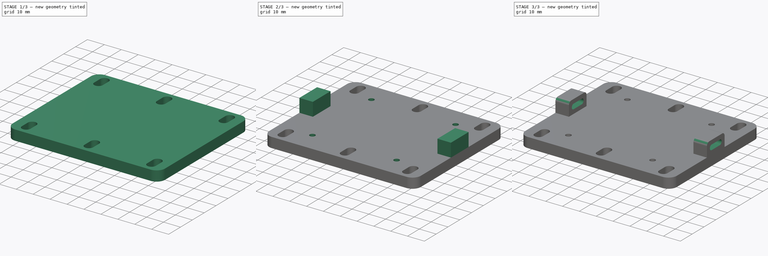
[diagram: build sequence overview — one tinted view per stage of 3, left to right]
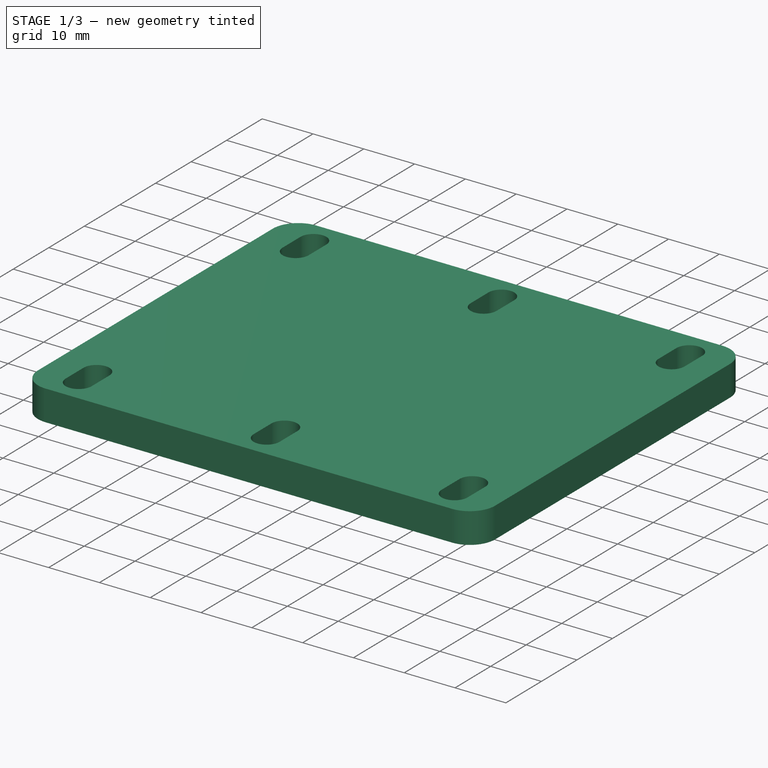
[diagram: stage 1 of 3 — iso view after this stage's code; geometry added in this stage tinted green]
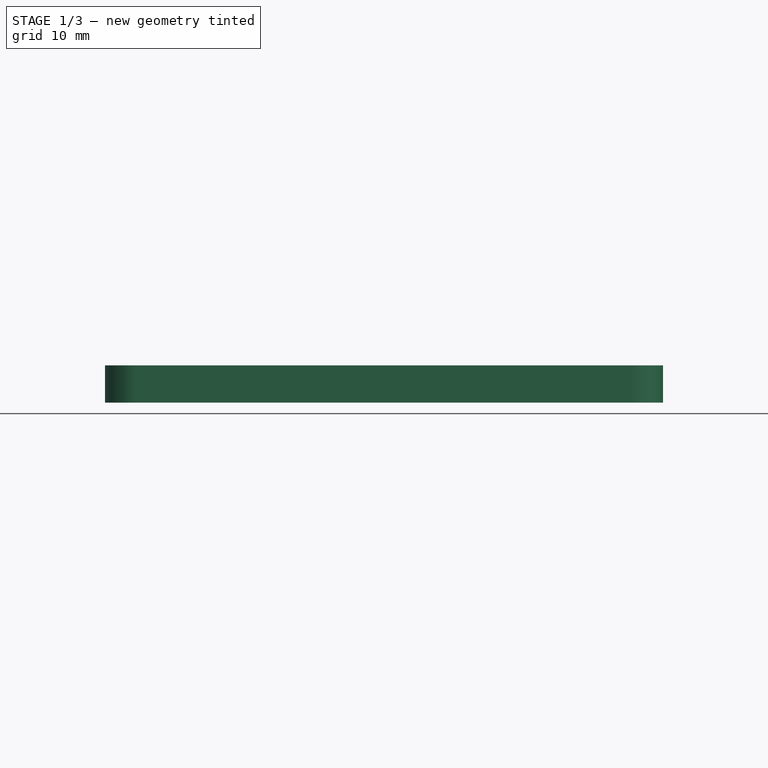
[diagram: stage 1 of 3 — front view after this stage's code; geometry added in this stage tinted green]
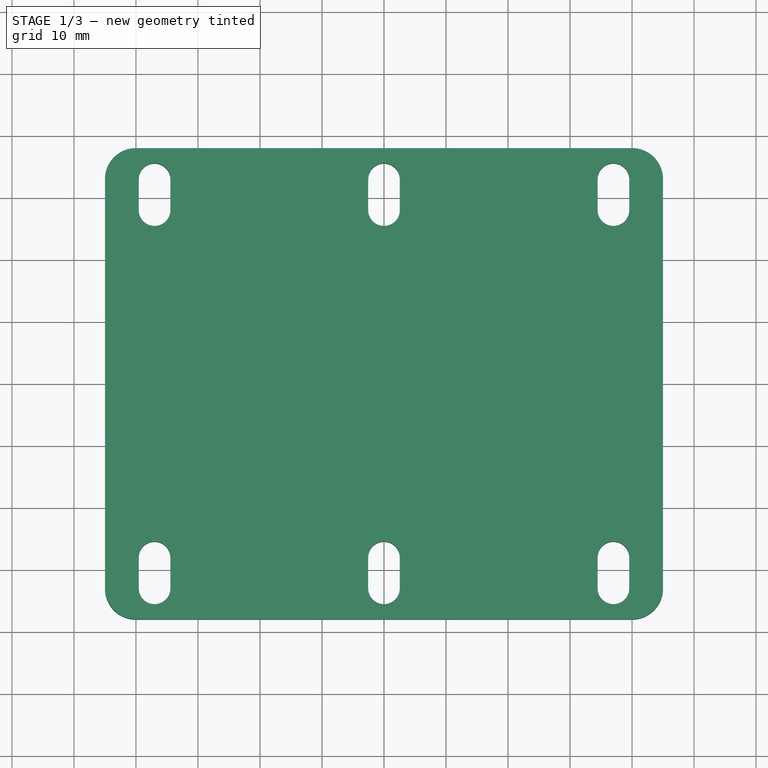
[diagram: stage 1 of 3 — top view after this stage's code; geometry added in this stage tinted green]
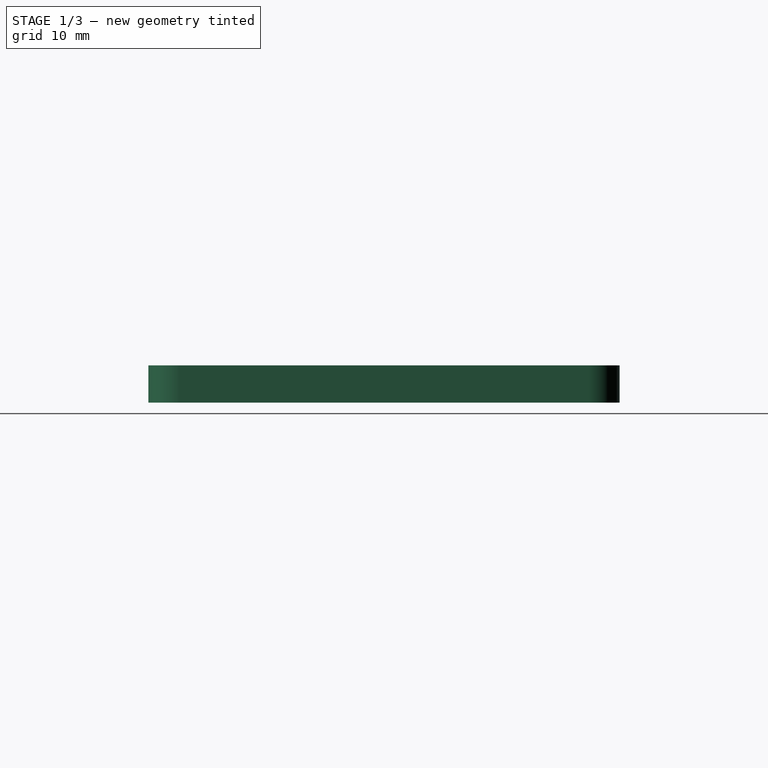
[diagram: stage 1 of 3 — right view after this stage's code; geometry added in this stage tinted green]
FCSTD DOCUMENT  (FreeCAD 1.0R38806 (Git))
Label: slider_base_v3_beltloops
License: All rights reserved
LicenseURL: http://en.wikipedia.org/wiki/All_rights_reserved
objects: Sketcher::SketchObject×4, PartDesign::Pad×2, PartDesign::Fillet×2, PartDesign::Pocket×2, PartDesign::Body×1
note: 27 computed .brp shape members not serialized (recipe doc carries the construction recipe); baked Part::Feature solids carry a one-line shape summary decoded from their .brp

FEATURE [Sketcher::SketchObject] Sketch
  ArcFitTolerance = 1e-06
  AttachmentSupport = -> [XY_Plane]
  FullyConstrained = true
  MakeInternals = false
  MapMode = 5
  sketch-geometry (28):
    g0: LineSegment StartX=-45 StartY=38 StartZ=0 EndX=-45 EndY=-38 EndZ=0
    g1: LineSegment StartX=-45 StartY=-38 StartZ=0 EndX=45 EndY=-38 EndZ=0
    g2: LineSegment StartX=45 StartY=-38 StartZ=0 EndX=45 EndY=38 EndZ=0
    g3: LineSegment StartX=45 StartY=38 StartZ=0 EndX=-45 EndY=38 EndZ=0
    g4: ArcOfCircle CenterX=-37 CenterY=33 CenterZ=0 NormalX=0 NormalY=0 NormalZ=1 AngleXU=0 Radius=2.55 StartAngle=0 EndAngle=3.14159
    g5: ArcOfCircle CenterX=-37 CenterY=28 CenterZ=0 NormalX=0 NormalY=0 NormalZ=1 AngleXU=0 Radius=2.55 StartAngle=3.14159 EndAngle=6.28319
    g6: LineSegment StartX=-34.45 StartY=33 StartZ=0 EndX=-34.45 EndY=28 EndZ=0
    g7: LineSegment StartX=-39.55 StartY=33 StartZ=0 EndX=-39.55 EndY=28 EndZ=0
    g8: ArcOfCircle CenterX=0 CenterY=33 CenterZ=0 NormalX=0 NormalY=0 NormalZ=1 AngleXU=0 Radius=2.55 StartAngle=1.4e-15 EndAngle=3.14159
    g9: ArcOfCircle CenterX=-5e-16 CenterY=28 CenterZ=0 NormalX=0 NormalY=0 NormalZ=1 AngleXU=0 Radius=2.55 StartAngle=3.14159 EndAngle=6.28319
    g10: LineSegment StartX=2.55 StartY=33 StartZ=0 EndX=2.55 EndY=28 EndZ=0
    g11: LineSegment StartX=-2.55 StartY=33 StartZ=0 EndX=-2.55 EndY=28 EndZ=0
    g12: ArcOfCircle CenterX=37 CenterY=-28 CenterZ=0 NormalX=0 NormalY=0 NormalZ=1 AngleXU=0 Radius=2.55 StartAngle=0 EndAngle=3.14159
    g13: ArcOfCircle CenterX=37 CenterY=-33 CenterZ=0 NormalX=0 NormalY=0 NormalZ=1 AngleXU=0 Radius=2.55 StartAngle=3.14159 EndAngle=6.28319
    g14: LineSegment StartX=39.55 StartY=-28 StartZ=0 EndX=39.55 EndY=-33 EndZ=0
    g15: LineSegment StartX=34.45 StartY=-28 StartZ=0 EndX=34.45 EndY=-33 EndZ=0
    g16: ArcOfCircle CenterX=2e-16 CenterY=-28 CenterZ=0 NormalX=0 NormalY=0 NormalZ=1 AngleXU=0 Radius=2.55 StartAngle=0 EndAngle=3.14159
    g17: ArcOfCircle CenterX=0 CenterY=-33 CenterZ=0 NormalX=0 NormalY=0 NormalZ=1 AngleXU=0 Radius=2.55 StartAngle=3.14159 EndAngle=6.28319
    g18: LineSegment StartX=2.55 StartY=-28 StartZ=0 EndX=2.55 EndY=-33 EndZ=0
    g19: LineSegment StartX=-2.55 StartY=-28 StartZ=0 EndX=-2.55 EndY=-33 EndZ=0
    g20: ArcOfCircle CenterX=-37 CenterY=-28 CenterZ=0 NormalX=0 NormalY=0 NormalZ=1 AngleXU=0 Radius=2.55 StartAngle=0 EndAngle=3.14159
    g21: ArcOfCircle CenterX=-37 CenterY=-33 CenterZ=0 NormalX=0 NormalY=0 NormalZ=1 AngleXU=0 Radius=2.55 StartAngle=3.14159 EndAngle=6.28319
    g22: LineSegment StartX=-34.45 StartY=-28 StartZ=0 EndX=-34.45 EndY=-33 EndZ=0
    g23: LineSegment StartX=-39.55 StartY=-28 StartZ=0 EndX=-39.55 EndY=-33 EndZ=0
    g24: ArcOfCircle CenterX=37 CenterY=33 CenterZ=0 NormalX=0 NormalY=0 NormalZ=1 AngleXU=0 Radius=2.55 StartAngle=-9e-16 EndAngle=3.14159
    g25: ArcOfCircle CenterX=37 CenterY=28 CenterZ=0 NormalX=0 NormalY=0 NormalZ=1 AngleXU=0 Radius=2.55 StartAngle=3.14159 EndAngle=6.28319
    g26: LineSegment StartX=39.55 StartY=33 StartZ=0 EndX=39.55 EndY=28 EndZ=0
    g27: LineSegment StartX=34.45 StartY=33 StartZ=0 EndX=34.45 EndY=28 EndZ=0
  constraints (71):
    c: Coincident(g0,g1)
    c: Coincident(g1,g2)
    c: Coincident(g2,g3)
    c: Coincident(g3,g0)
    c: Vertical(g0)
    c: Vertical(g2)
    c: Horizontal(g1)
    c: Horizontal(g3)
    c: DistanceX(g3,g3) = 90
    c: DistanceY(g2,g2) = 76
    c: Symmetric(g2,g0,g-1)
    c: Tangent(g4,g6) = 1.5708
    c: Tangent(g4,g7) = -1.5708
    c: Tangent(g5,g6) = 1.5708
    c: Tangent(g5,g7) = -1.5708
    c: Equal(g4,g5)
    c: Radius(g4) = 2.55
    c: Vertical(g6)
    c: DistanceY(g6,g6) = 5
    c: DistanceY(g-1,g4) = 33
    c: DistanceX(g0,g4) = 8
    c: Tangent(g8,g10) = 1.5708
    c: Tangent(g8,g11) = -1.5708
    c: Tangent(g9,g10) = 1.5708
    c: Tangent(g9,g11) = -1.5708
    c: Equal(g8,g9)
    c: Vertical(g11)
    c: Distance(g8,g9) = 5
    c: Radius(g8) = 2.55
    c: Tangent(g12,g14) = 1.5708
    c: Tangent(g12,g15) = -1.5708
    c: Tangent(g13,g14) = 1.5708
    c: Tangent(g13,g15) = -1.5708
    c: Equal(g12,g13)
    c: Distance(g12,g13) = 5
    c: Radius(g12) = 2.55
    c: Vertical(g14)
    c: Tangent(g16,g18) = 1.5708
    c: Tangent(g16,g19) = -1.5708
    c: Tangent(g17,g18) = 1.5708
    c: Tangent(g17,g19) = -1.5708
    c: Equal(g16,g17)
    c: Distance(g16,g17) = 5
    c: Radius(g16) = 2.55
    c: Vertical(g18)
    c: Tangent(g20,g22) = 1.5708
    c: Tangent(g20,g23) = -1.5708
    c: Tangent(g21,g22) = 1.5708
    c: Tangent(g21,g23) = -1.5708
    c: Equal(g20,g21)
    c: Distance(g20,g21) = 5
    c: Radius(g20) = 2.55
    c: Vertical(g22)
    c: Tangent(g24,g26) = 1.5708
    c: Tangent(g24,g27) = -1.5708
    c: Tangent(g25,g26) = 1.5708
    c: Tangent(g25,g27) = -1.5708
    c: Equal(g24,g25)
    c: Distance(g24,g25) = 5
    c: Radius(g24) = 2.55
    c: Vertical(g26)
    c: DistanceX(g8,g-1) = 0
    c: DistanceY(g-1,g8) = 33
    c: DistanceY(g-1,g24) = 33
    c: DistanceX(g24,g2) = 8
    c: DistanceY(g13,g-1) = 33
    c: DistanceX(g13,g1) = 8
    c: DistanceY(g17,g-1) = 33
    c: DistanceX(g17,g-1) = 0
    c: DistanceY(g21,g-1) = 33
    c: DistanceX(g0,g21) = 8
FEATURE [PartDesign::Pad] Pad
  Direction = (0,0,1)
  Length = 6
  Length2 = 10
  Profile = -> Sketch
  ReferenceAxis = -> Sketch [N_Axis]
  Suppressed = false
  Type = 0
FEATURE [PartDesign::Fillet] Fillet
  Base = -> Pad [Edge5,Edge2,Edge8,Edge1]
  BaseFeature = -> Pad
  Radius = 5
  SupportTransform = false
  Suppressed = false
  UseAllEdges = false
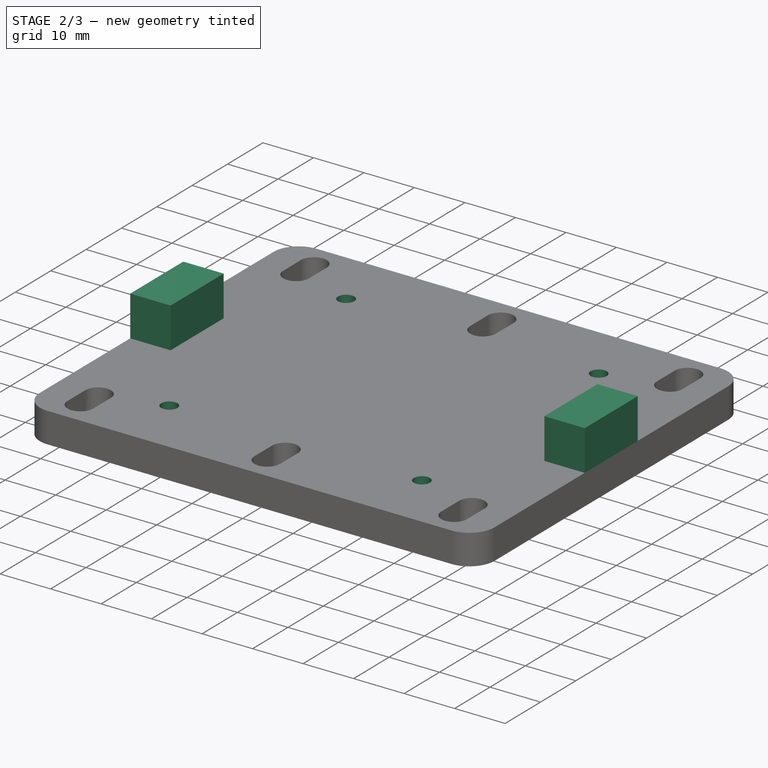
[diagram: stage 2 of 3 — iso view after this stage's code; geometry added in this stage tinted green]
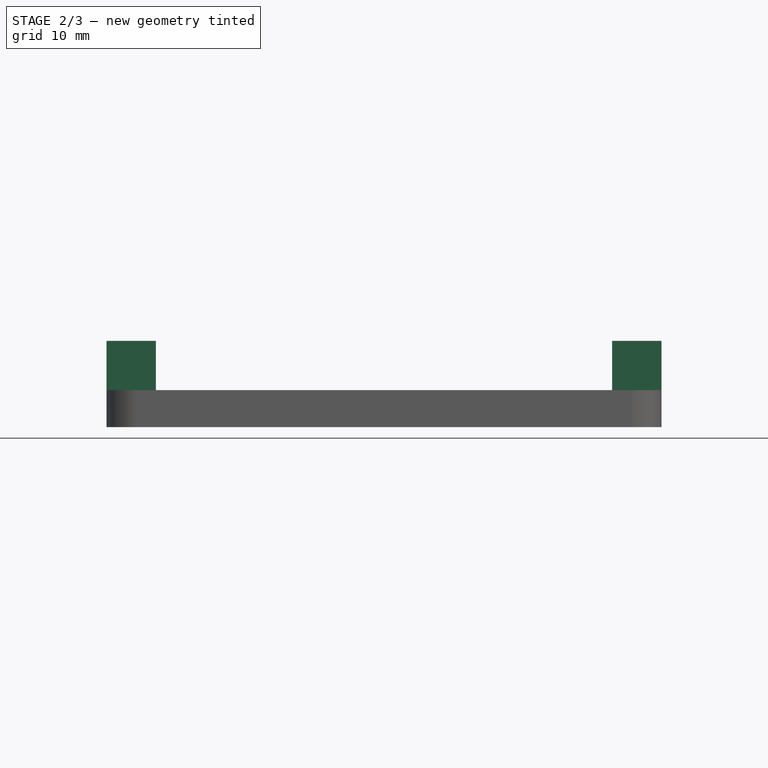
[diagram: stage 2 of 3 — front view after this stage's code; geometry added in this stage tinted green]
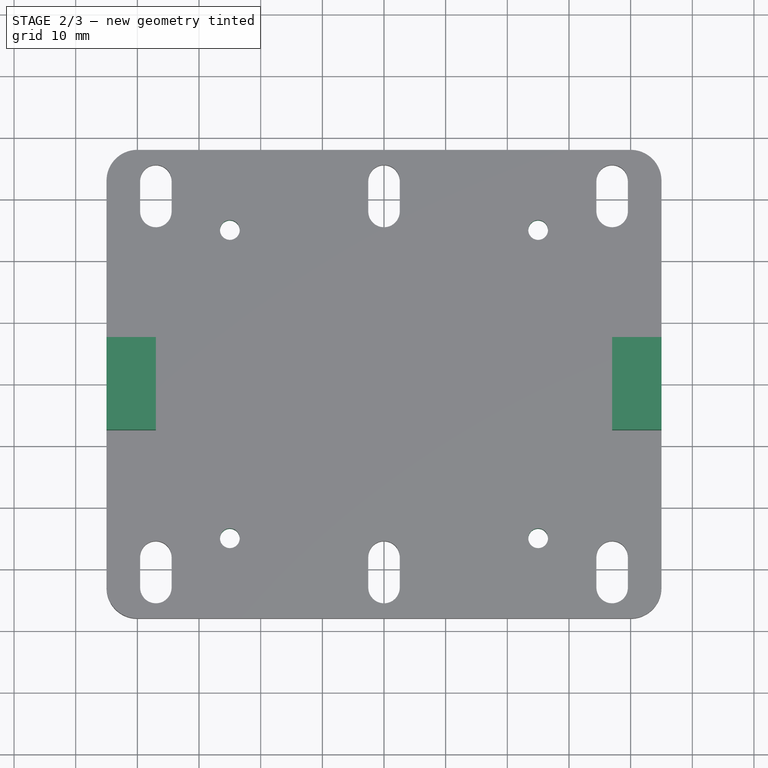
[diagram: stage 2 of 3 — top view after this stage's code; geometry added in this stage tinted green]
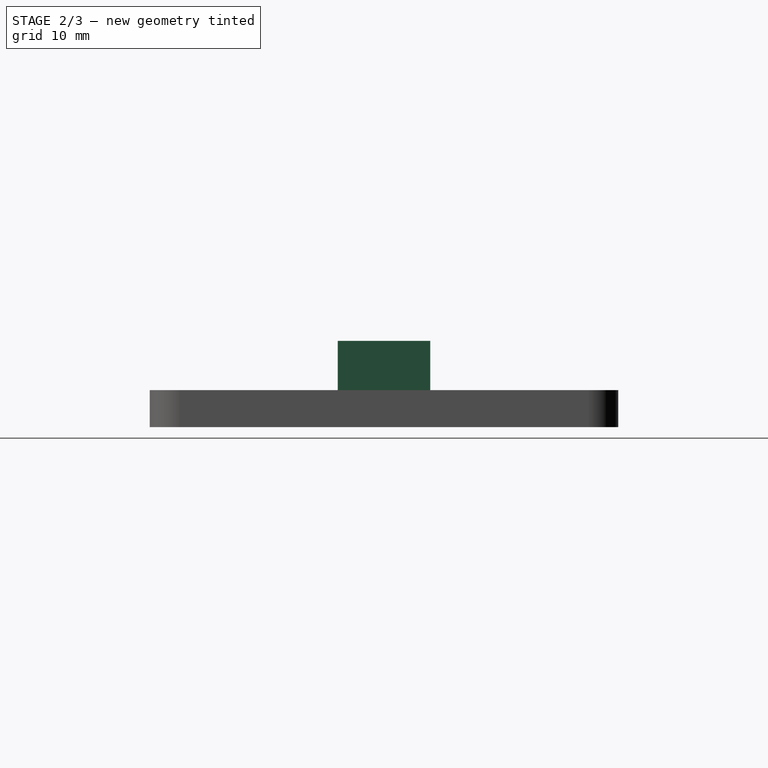
[diagram: stage 2 of 3 — right view after this stage's code; geometry added in this stage tinted green]
FEATURE [Sketcher::SketchObject] Sketch001
  ArcFitTolerance = 1e-06
  AttachmentSupport = -> [Fillet]
  FullyConstrained = true
  MakeInternals = false
  MapMode = 5
  Placement = pos=(0,0,6) rot=(0,0,1;0rad)
  sketch-geometry (4):
    g0: Circle CenterX=25 CenterY=25 CenterZ=0 NormalX=0 NormalY=0 NormalZ=1 AngleXU=0 Radius=1.6
    g1: Circle CenterX=25 CenterY=-25 CenterZ=0 NormalX=0 NormalY=0 NormalZ=1 AngleXU=0 Radius=1.6
    g2: Circle CenterX=-25 CenterY=25 CenterZ=0 NormalX=0 NormalY=0 NormalZ=1 AngleXU=0 Radius=1.6
    g3: Circle CenterX=-25 CenterY=-25 CenterZ=0 NormalX=0 NormalY=0 NormalZ=1 AngleXU=0 Radius=1.6
  constraints (12):
    c: Diameter(g0) = 3.2
    c: Diameter(g1) = 3.2
    c: Vertical(g0,g1)
    c: DistanceY(g-1,g0) = 25
    c: DistanceY(g1,g-1) = 25
    c: DistanceX(g-1,g1) = 25
    c: Diameter(g2) = 3.2
    c: Diameter(g3) = 3.2
    c: Vertical(g3,g2)
    c: DistanceY(g-1,g2) = 25
    c: DistanceY(g3,g-1) = 25
    c: DistanceX(g3,g-1) = 25
FEATURE [PartDesign::Pocket] Pocket
  BaseFeature = -> Fillet
  Direction = (0,0,-1)
  Length = 6
  Length2 = 5
  Profile = -> Sketch001
  ReferenceAxis = -> Sketch001 [N_Axis]
  Suppressed = false
  Type = 0
FEATURE [Sketcher::SketchObject] Sketch002
  ArcFitTolerance = 1e-06
  AttachmentSupport = -> [Pocket]
  ExternalGeometry = -> [Pocket]
  FullyConstrained = true
  MakeInternals = false
  MapMode = 5
  Placement = pos=(0,0,6) rot=(0,0,1;0rad)
  sketch-geometry (8):
    g0: LineSegment StartX=-45 StartY=7.5 StartZ=0 EndX=-45 EndY=-7.5 EndZ=0
    g1: LineSegment StartX=-45 StartY=-7.5 StartZ=0 EndX=-37 EndY=-7.5 EndZ=0
    g2: LineSegment StartX=-37 StartY=-7.5 StartZ=0 EndX=-37 EndY=7.5 EndZ=0
    g3: LineSegment StartX=-37 StartY=7.5 StartZ=0 EndX=-45 EndY=7.5 EndZ=0
    g4: LineSegment StartX=45 StartY=-7.5 StartZ=0 EndX=45 EndY=7.5 EndZ=0
    g5: LineSegment StartX=45 StartY=7.5 StartZ=0 EndX=37 EndY=7.5 EndZ=0
    g6: LineSegment StartX=37 StartY=7.5 StartZ=0 EndX=37 EndY=-7.5 EndZ=0
    g7: LineSegment StartX=37 StartY=-7.5 StartZ=0 EndX=45 EndY=-7.5 EndZ=0
  constraints (22):
    c: Coincident(g0,g1)
    c: Coincident(g1,g2)
    c: Coincident(g2,g3)
    c: Coincident(g3,g0)
    c: Vertical(g0)
    c: Horizontal(g1)
    c: Horizontal(g3)
    c: PointOnObject(g0,g-3)
    c: Coincident(g4,g5)
    c: Coincident(g5,g6)
    c: Coincident(g6,g7)
    c: Coincident(g7,g4)
    c: Vertical(g4)
    c: Horizontal(g5)
    c: Horizontal(g7)
    c: PointOnObject(g4,g-4)
    c: Symmetric(g2,g1,g-1)
    c: DistanceY(g2,g2) = 15
    c: DistanceX(g1,g1) = 8
    c: Symmetric(g6,g5,g-1)
    c: DistanceY(g6,g6) = 15
    c: DistanceX(g5,g5) = 8
FEATURE [PartDesign::Pad] Pad001
  BaseFeature = -> Pocket
  Direction = (0,0,1)
  Length = 8
  Length2 = 10
  Profile = -> Sketch002
  ReferenceAxis = -> Sketch002 [N_Axis]
  Suppressed = false
  Type = 0
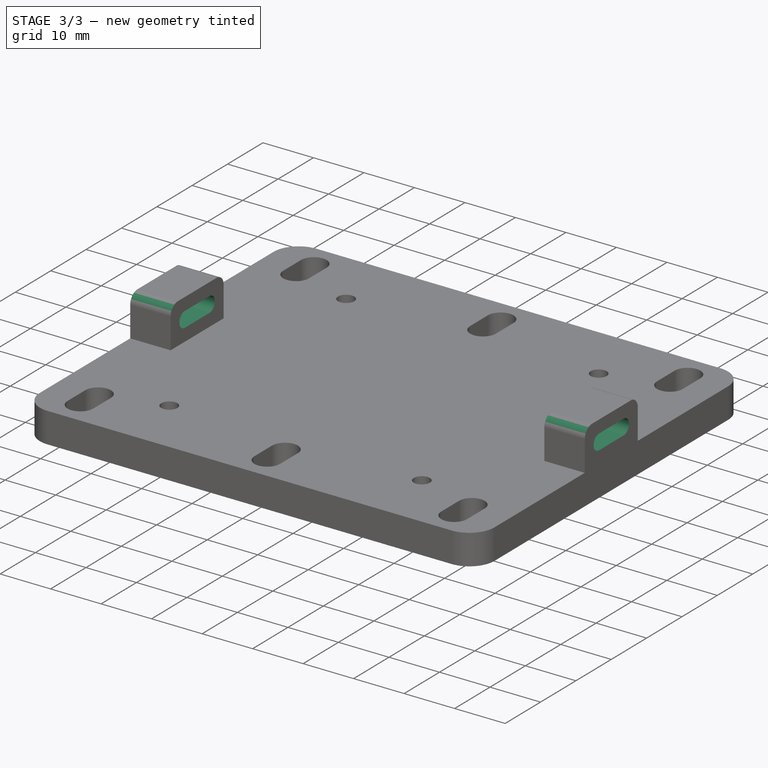
[diagram: stage 3 of 3 — iso view after this stage's code; geometry added in this stage tinted green]
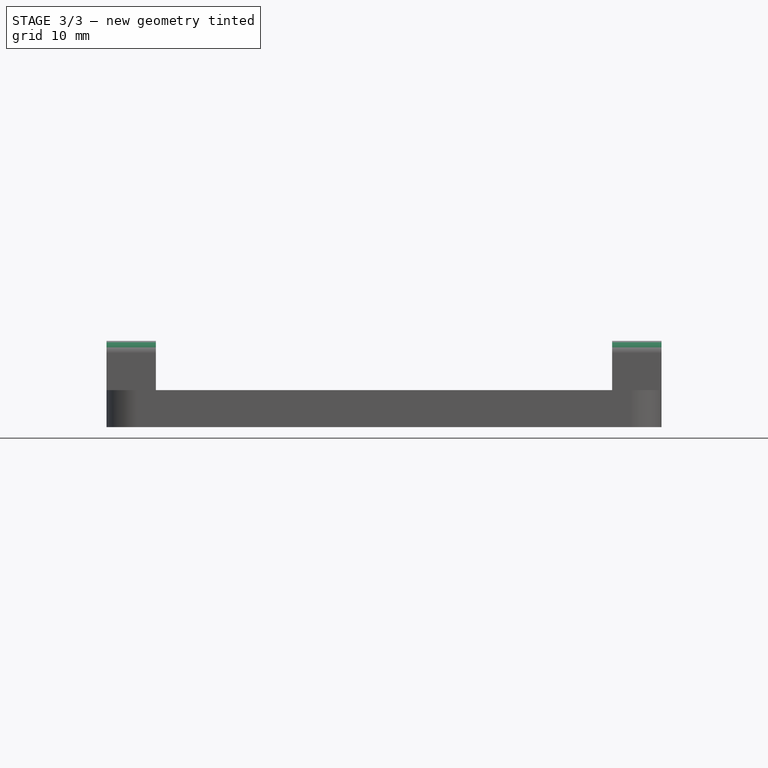
[diagram: stage 3 of 3 — front view after this stage's code; geometry added in this stage tinted green]
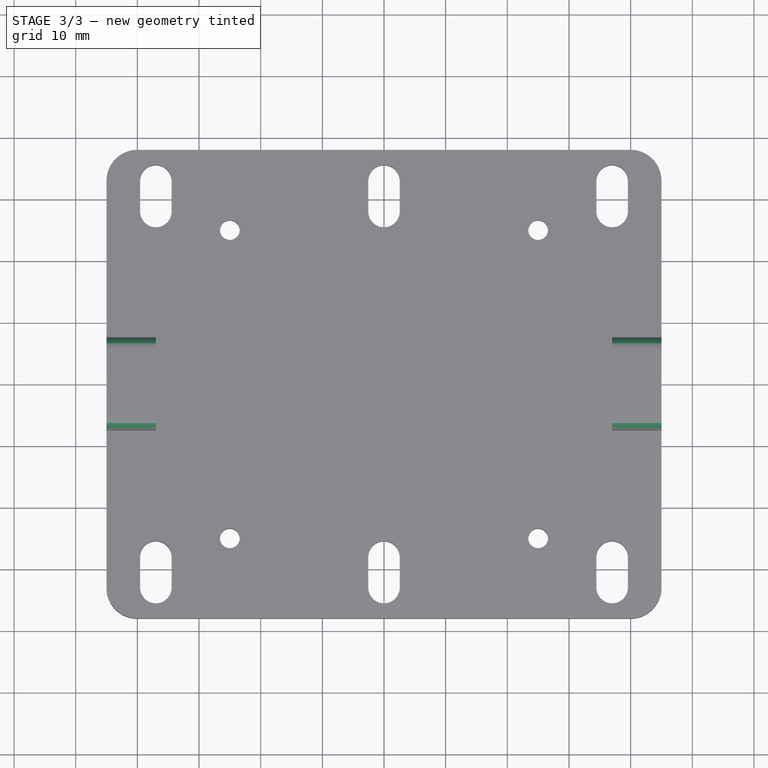
[diagram: stage 3 of 3 — top view after this stage's code; geometry added in this stage tinted green]
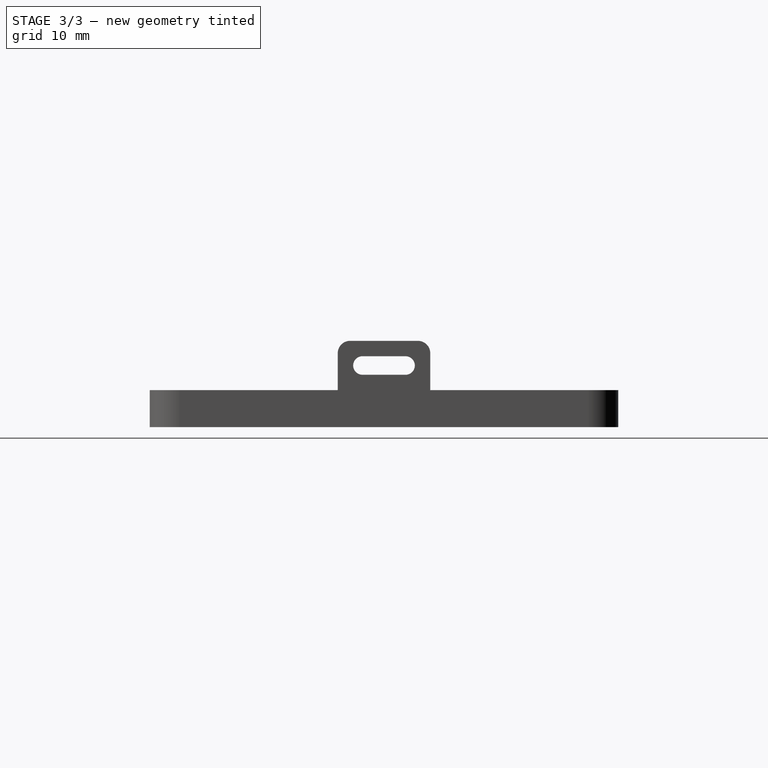
[diagram: stage 3 of 3 — right view after this stage's code; geometry added in this stage tinted green]
FEATURE [Sketcher::SketchObject] Sketch003
  ArcFitTolerance = 1e-06
  AttachmentSupport = -> [Pad001]
  ExternalGeometry = -> [Pad001]
  FullyConstrained = true
  MakeInternals = false
  MapMode = 5
  Placement = pos=(-45,0,0) rot=(0.57735,-0.57735,-0.57735;2.0944rad)
  sketch-geometry (4):
    g0: ArcOfCircle CenterX=-3.5 CenterY=10 CenterZ=0 NormalX=0 NormalY=0 NormalZ=1 AngleXU=0 Radius=1.5 StartAngle=1.5708 EndAngle=4.71239
    g1: ArcOfCircle CenterX=3.5 CenterY=10 CenterZ=0 NormalX=0 NormalY=0 NormalZ=1 AngleXU=0 Radius=1.5 StartAngle=4.71239 EndAngle=7.85398
    g2: LineSegment StartX=-3.5 StartY=11.5 StartZ=0 EndX=3.5 EndY=11.5 EndZ=0
    g3: LineSegment StartX=-3.5 StartY=8.5 StartZ=0 EndX=3.5 EndY=8.5 EndZ=0
  constraints (9):
    c: Tangent(g0,g2) = 1.5708
    c: Tangent(g0,g3) = -1.5708
    c: Tangent(g1,g2) = 1.5708
    c: Tangent(g1,g3) = -1.5708
    c: Equal(g0,g1)
    c: Symmetric(g1,g0,g-2)
    c: DistanceY(g1,g1) = 3
    c: DistanceY(g0,g-3) = 4
    c: DistanceX(g2,g2) = 7
FEATURE [PartDesign::Pocket] Pocket001
  BaseFeature = -> Pad001
  Direction = (1,0,0)
  Length = 5
  Length2 = 5
  Profile = -> Sketch003
  ReferenceAxis = -> Sketch003 [N_Axis]
  Suppressed = false
  Type = 1
FEATURE [PartDesign::Fillet] Fillet001
  Base = -> Pocket001 [Edge145,Edge138,Edge136,Edge128]
  BaseFeature = -> Pocket001
  Radius = 2
  SupportTransform = false
  Suppressed = false
  UseAllEdges = false
FEATURE [PartDesign::Body] Body
  AllowCompound = false
  Group = -> [Sketch,Pad,Fillet,Sketch001,Pocket,Sketch002,Pad001,Sketch003,Pocket001,Fillet001]
  Origin = -> Origin
  Tip = -> Fillet001
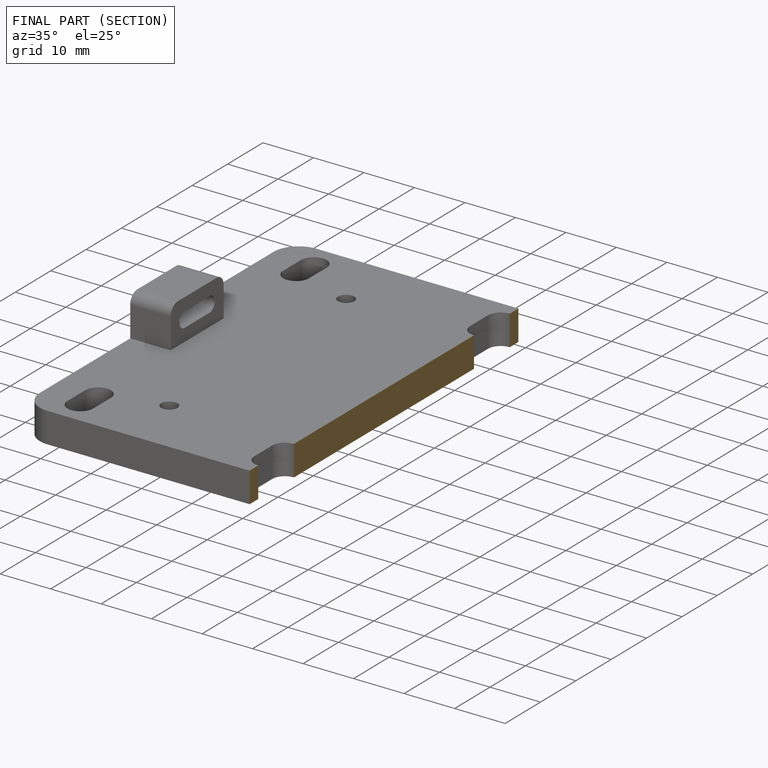
[diagram: finished part — half-section view (interior)]
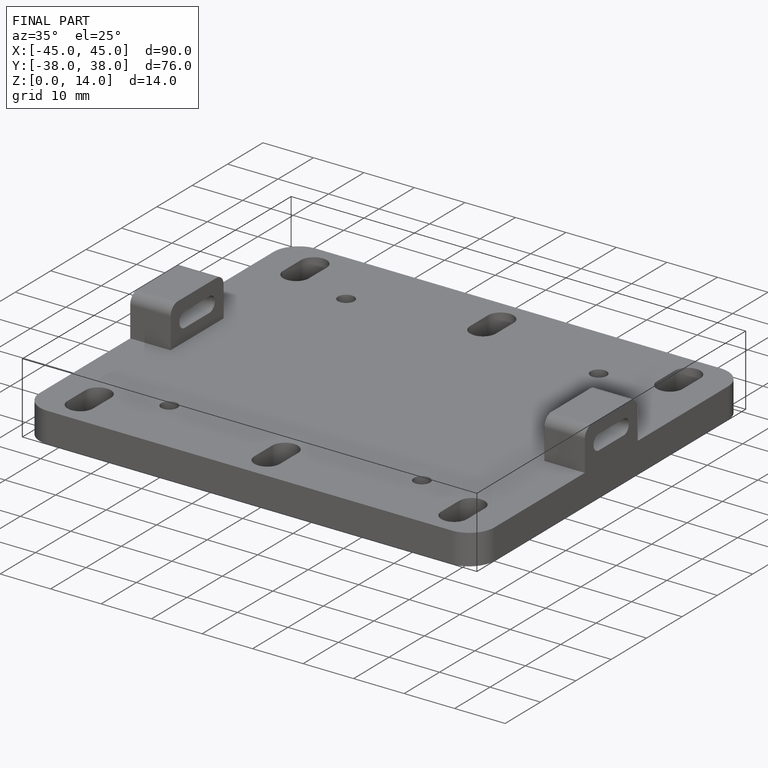
[diagram: finished part — iso view with bounding-box wireframe]
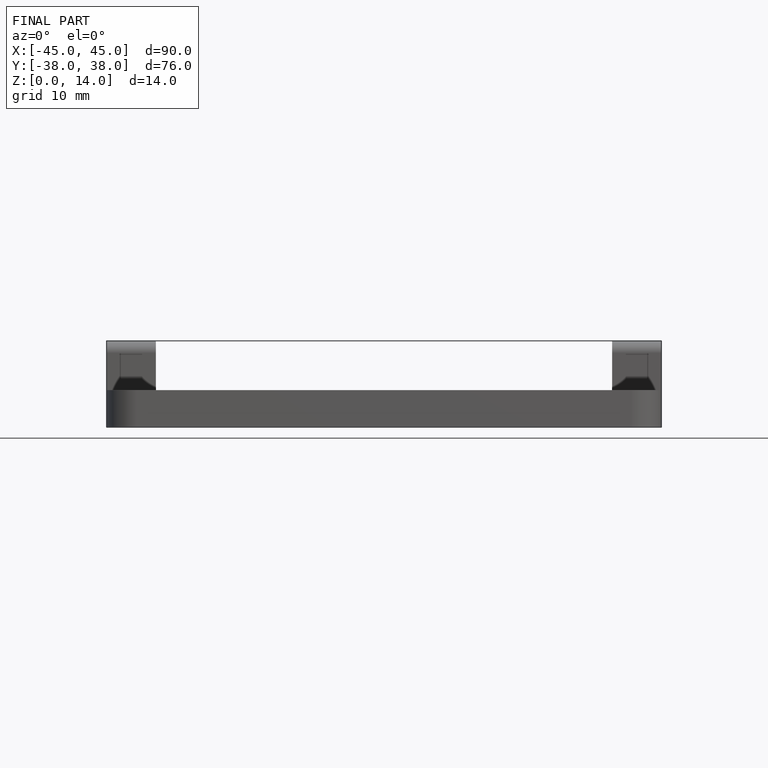
[diagram: finished part — front view with bounding-box wireframe]
